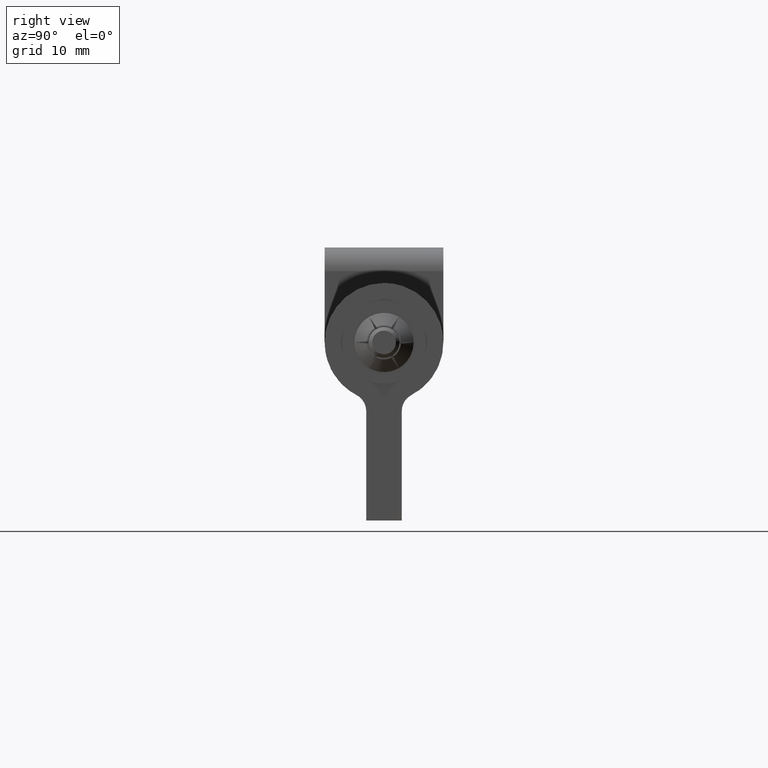
[diagram: clean part render]
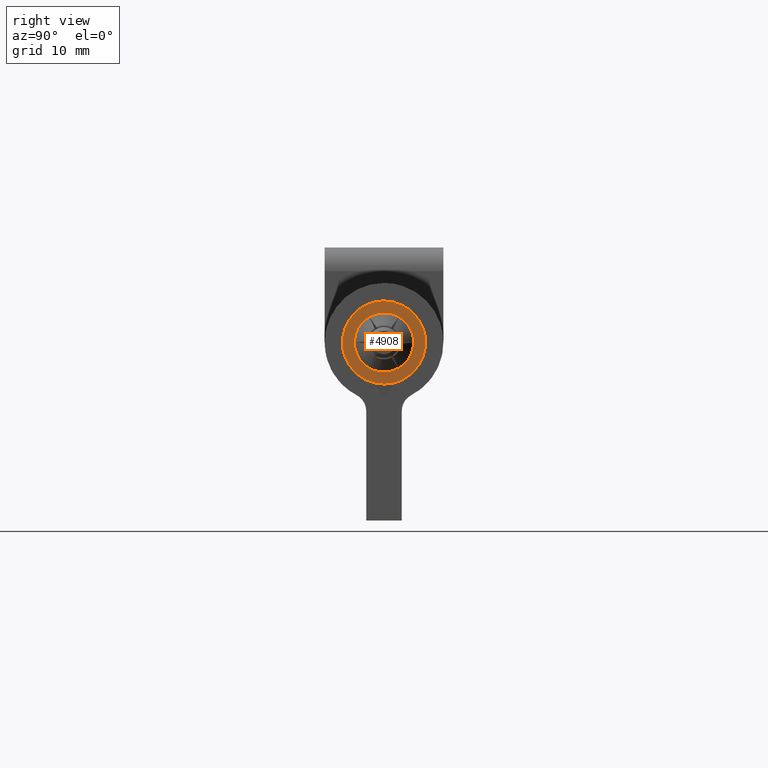
[diagram: same view with one face highlighted and labeled with its STEP entity id]
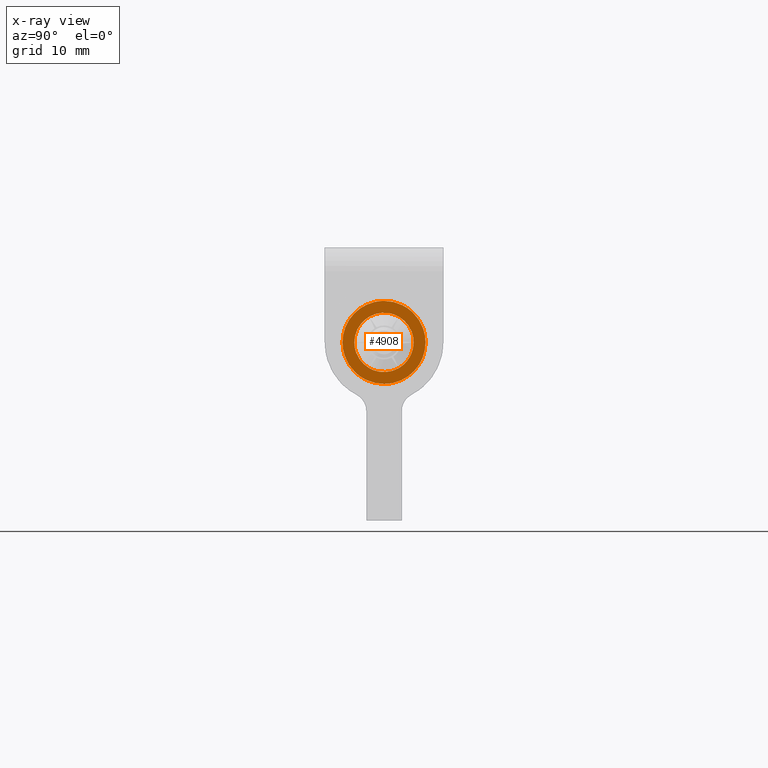
[diagram: x-ray of the same camera — body ghosted, the highlighted face saturated]
A machine part, right view. The second image highlights one B-rep face of the part: STEP entity #4908.
The next image is the same camera in x-ray: the body ghosted, the highlighted face saturated — about 0% of this face is hidden behind the body in this view.
In plain terms, the highlighted face is a freeform B-spline surface patch.
Its self-contained STEP definition (entity closure, byte-faithful):
#3231=CARTESIAN_POINT('',(27.999999999959371,2.409240859568138,2.538810073887069));
#3232=VERTEX_POINT('',#3231);
#3233=CARTESIAN_POINT('',(28.0,3.499999999999783,-9.636737E-014));
#3234=VERTEX_POINT('',#3233);
#3235=CARTESIAN_POINT('',(27.999999999959371,2.409240859568138,2.538810073887069));
#3236=CARTESIAN_POINT('',(27.999999999961780,2.570225856628080,2.386066624172577));
#3237=CARTESIAN_POINT('',(27.999999999967791,2.892297416835023,2.016219094284538));
#3238=CARTESIAN_POINT('',(27.999999999978069,3.254013342036158,1.365433356918790));
#3239=CARTESIAN_POINT('',(27.999999999989409,3.459191318573557,0.665749802506983));
#3240=CARTESIAN_POINT('',(27.999999999996579,3.500012388989291,0.207120784657451));
#3241=CARTESIAN_POINT('',(28.0,3.499999999999783,-9.636737E-014));
#3242=B_SPLINE_CURVE_WITH_KNOTS('',3,(#3235,#3236,#3237,#3238,#3239,#3240,#3241),.UNSPECIFIED.,.F.,.U.,(4,1,1,1,4),(0.000000014238259,0.665751402348227,1.464647163423969,2.219174010645465,2.840542237138469),.UNSPECIFIED.);
#3243=EDGE_CURVE('',#3232,#3234,#3242,.T.);
#3245=CARTESIAN_POINT('',(28.0,0.0,-3.500000000000000));
#3246=VERTEX_POINT('',#3245);
#3247=CARTESIAN_POINT('',(28.0,3.499999999999783,-9.636737E-014));
#3248=CARTESIAN_POINT('',(27.999999999999979,3.500130392241647,-0.329309051971728));
#3249=CARTESIAN_POINT('',(28.000000000000028,3.412466930117204,-0.944877120011206));
#3250=CARTESIAN_POINT('',(27.999999999999961,3.082824601969040,-1.713868453975557));
#3251=CARTESIAN_POINT('',(28.0,2.640198208618704,-2.334185868881482));
#3252=CARTESIAN_POINT('',(28.000000000000028,2.165288396647390,-2.775346392374348));
#3253=CARTESIAN_POINT('',(27.999999999999918,1.607352775286510,-3.128628153990518));
#3254=CARTESIAN_POINT('',(28.000000000000060,0.916226425377298,-3.414965352860787));
#3255=CARTESIAN_POINT('',(28.000000000000039,0.343627778705872,-3.500146759900428));
#3256=CARTESIAN_POINT('',(28.0,0.0,-3.500000000000000));
#3257=B_SPLINE_CURVE_WITH_KNOTS('',3,(#3247,#3248,#3249,#3250,#3251,#3252,#3253,#3254,#3255,#3256),.UNSPECIFIED.,.F.,.U.,(4,1,1,1,1,1,1,4),(0.000000052157490,0.987889782222958,1.846925004193536,2.491217429283319,3.264325564849523,3.779750797745558,4.466981692409103,5.497821640064636),.UNSPECIFIED.);
#3258=EDGE_CURVE('',#3234,#3246,#3257,.T.);
#3260=CARTESIAN_POINT('',(27.999999999959371,-2.409240859568137,-2.538810073887067));
#3261=VERTEX_POINT('',#3260);
#3262=CARTESIAN_POINT('',(28.0,0.0,-3.500000000000000));
#3263=CARTESIAN_POINT('',(27.999999999993960,-0.359859219560689,-3.500183061191727));
#3264=CARTESIAN_POINT('',(27.999999999983359,-0.982549023659700,-3.403079979210655));
#3265=CARTESIAN_POINT('',(27.999999999969820,-1.796036318970776,-3.038632073028197));
#3266=CARTESIAN_POINT('',(27.999999999962590,-2.218529141223570,-2.719857903514712));
#3267=CARTESIAN_POINT('',(27.999999999959371,-2.409240859568137,-2.538810073887067));
#3268=B_SPLINE_CURVE_WITH_KNOTS('',3,(#3262,#3263,#3264,#3265,#3266,#3267),.UNSPECIFIED.,.F.,.U.,(4,1,1,4),(0.000000013905158,1.079525853581952,1.868397657742726,2.657279305874354),.UNSPECIFIED.);
#3269=EDGE_CURVE('',#3246,#3261,#3268,.T.);
#3344=CARTESIAN_POINT('',(28.0,0.0,3.500000000000000));
#3345=VERTEX_POINT('',#3344);
#3346=CARTESIAN_POINT('',(28.0,0.0,3.500000000000000));
#3347=CARTESIAN_POINT('',(27.999999999993911,0.359863016871307,3.500162027344497));
#3348=CARTESIAN_POINT('',(27.999999999984450,0.927175254800581,3.411695913942832));
#3349=CARTESIAN_POINT('',(27.999999999970321,1.747143093139288,3.067471197900160));
#3350=CARTESIAN_POINT('',(27.999999999963439,2.178412370588235,2.758022279196943));
#3351=CARTESIAN_POINT('',(27.999999999959371,2.409240859568138,2.538810073887069));
#3352=B_SPLINE_CURVE_WITH_KNOTS('',3,(#3346,#3347,#3348,#3349,#3350,#3351),.UNSPECIFIED.,.F.,.U.,(4,1,1,4),(0.000000013905262,1.079525853581974,1.702314600375038,2.657279305874357),.UNSPECIFIED.);
#3353=EDGE_CURVE('',#3345,#3232,#3352,.T.);
#3395=CARTESIAN_POINT('',(28.0,-3.499999999999883,-9.459101E-014));
#3396=VERTEX_POINT('',#3395);
#3397=CARTESIAN_POINT('',(27.999999999959371,-2.409240859568137,-2.538810073887067));
#3398=CARTESIAN_POINT('',(27.999999999963141,-2.656179035385723,-2.304676411157233));
#3399=CARTESIAN_POINT('',(27.999999999970150,-2.997679223452478,-1.869453372971103));
#3400=CARTESIAN_POINT('',(27.999999999979980,-3.283163888558349,-1.248721519460876));
#3401=CARTESIAN_POINT('',(27.999999999989551,-3.454173000166062,-0.665724550438682));
#3402=CARTESIAN_POINT('',(27.999999999995609,-3.500061088438027,-0.266306394642206));
#3403=CARTESIAN_POINT('',(28.0,-3.499999999999883,-9.459101E-014));
#3404=B_SPLINE_CURVE_WITH_KNOTS('',3,(#3397,#3398,#3399,#3400,#3401,#3402,#3403),.UNSPECIFIED.,.F.,.U.,(4,1,1,1,4),(0.000000014238115,1.020820981130070,1.642186078970198,2.041639353378021,2.840542237138319),.UNSPECIFIED.);
#3405=EDGE_CURVE('',#3261,#3396,#3404,.T.);
#3407=CARTESIAN_POINT('',(28.0,-3.499999999999883,-9.459101E-014));
#3408=CARTESIAN_POINT('',(28.000000000000039,-3.500159158261031,0.357949743018625));
#3409=CARTESIAN_POINT('',(27.999999999999929,-3.413589445304913,0.916204540854598));
#3410=CARTESIAN_POINT('',(28.000000000000089,-3.122049052976477,1.619838797748433));
#3411=CARTESIAN_POINT('',(27.999999999999929,-2.814538444908927,2.105455354835672));
#3412=CARTESIAN_POINT('',(28.000000000000188,-2.405632896234894,2.567913107113827));
#3413=CARTESIAN_POINT('',(27.999999999999901,-1.874853588771580,2.987457355102112));
#3414=CARTESIAN_POINT('',(27.999999999999950,-1.240520140574236,3.297037938349385));
#3415=CARTESIAN_POINT('',(28.000000000000210,-0.601310976870706,3.465467574221806));
#3416=CARTESIAN_POINT('',(27.999999999999769,-0.200436769823824,3.500015795892039));
#3417=CARTESIAN_POINT('',(28.0,0.0,3.500000000000000));
#3418=B_SPLINE_CURVE_WITH_KNOTS('',3,(#3407,#3408,#3409,#3410,#3411,#3412,#3413,#3414,#3415,#3416,#3417),.UNSPECIFIED.,.F.,.U.,(4,1,1,1,1,1,1,1,4),(0.000000052155946,1.073788585378987,1.675118029931860,2.276456654459991,2.791847139663632,3.522032093597243,4.295173604991768,4.896509894190674,5.497821640064829),.UNSPECIFIED.);
#3419=EDGE_CURVE('',#3396,#3345,#3418,.T.);
#3973=CARTESIAN_POINT('',(28.0,1.250000254032134,2.165063362795555));
#3974=VERTEX_POINT('',#3973);
#4045=CARTESIAN_POINT('',(28.0,2.500000000000000,1.530758E-016));
#4046=VERTEX_POINT('',#4045);
#4099=CARTESIAN_POINT('',(28.0,1.250000000000000,-2.165064000000100));
#4100=VERTEX_POINT('',#4099);
#4153=CARTESIAN_POINT('',(28.0,-1.250000000000000,-2.165064000000100));
#4154=VERTEX_POINT('',#4153);
#4223=CARTESIAN_POINT('',(28.0,-1.250000000000000,2.165062999999905));
#4224=VERTEX_POINT('',#4223);
#4381=CARTESIAN_POINT('',(28.0,1.250000254032134,2.165063362795555));
#4382=CARTESIAN_POINT('',(28.0,1.450806822638458,2.049239247101102));
#4383=CARTESIAN_POINT('',(27.999999999999940,1.743735157992030,1.820415054590030));
#4384=CARTESIAN_POINT('',(28.000000000000131,2.099603368873388,1.386823704461508));
#4385=CARTESIAN_POINT('',(27.999999999999702,2.332533798663091,0.951070335471152));
#4386=CARTESIAN_POINT('',(28.000000000000391,2.471693023128636,0.463599688982680));
#4387=CARTESIAN_POINT('',(27.999999999999702,2.500014547895127,0.149988963467968));
#4388=CARTESIAN_POINT('',(28.0,2.500000000000000,1.530758E-016));
#4389=B_SPLINE_CURVE_WITH_KNOTS('',3,(#4381,#4382,#4383,#4384,#4385,#4386,#4387,#4388),.UNSPECIFIED.,.F.,.U.,(4,1,1,1,1,4),(0.000000024618684,0.695413311101813,1.104486125796111,1.677164354418533,2.168054125964194,2.618022786524008),.UNSPECIFIED.);
#4390=EDGE_CURVE('',#3974,#4046,#4389,.T.);
#4630=CARTESIAN_POINT('',(28.0,2.500000000000000,1.530758E-016));
#4631=CARTESIAN_POINT('',(27.999999999999961,2.500043468027985,-0.204531658367949));
#4632=CARTESIAN_POINT('',(28.000000000000028,2.447871384142051,-0.627224320636368));
#4633=CARTESIAN_POINT('',(28.000000000000011,2.220432971227176,-1.202772253830683));
#4634=CARTESIAN_POINT('',(27.999999999999929,1.828693764809412,-1.749447136830397));
#4635=CARTESIAN_POINT('',(28.000000000000082,1.474438068351437,-2.035630988469716));
#4636=CARTESIAN_POINT('',(28.0,1.250000000000000,-2.165064000000100));
#4637=B_SPLINE_CURVE_WITH_KNOTS('',3,(#4630,#4631,#4632,#4633,#4634,#4635,#4636),.UNSPECIFIED.,.F.,.U.,(4,1,1,1,4),(0.000000024618720,0.613598262857542,1.268112393423468,1.840797465847526,2.618023399937272),.UNSPECIFIED.);
#4638=EDGE_CURVE('',#4046,#4100,#4637,.T.);
#4660=CARTESIAN_POINT('',(28.0,1.250000000000000,-2.165064000000100));
#4661=CARTESIAN_POINT('',(28.000000000000039,1.002100413629216,-2.308442416398884));
#4662=CARTESIAN_POINT('',(27.999999999999950,0.547352418730374,-2.474959919381392));
#4663=CARTESIAN_POINT('',(28.000000000000071,-0.041562291559818,-2.513518423784426));
#4664=CARTESIAN_POINT('',(27.999999999999851,-0.625314672048996,-2.446398486410439));
#4665=CARTESIAN_POINT('',(27.999999999999840,-1.002090294719192,-2.308435862241776));
#4666=CARTESIAN_POINT('',(28.0,-1.250000000000000,-2.165064000000100));
#4667=B_SPLINE_CURVE_WITH_KNOTS('',3,(#4660,#4661,#4662,#4663,#4664,#4665,#4666),.UNSPECIFIED.,.F.,.U.,(4,1,1,1,4),(0.000000024618425,0.859042751859408,1.431718894339348,1.758980080179177,2.618022807420120),.UNSPECIFIED.);
#4668=EDGE_CURVE('',#4100,#4154,#4667,.T.);
#4699=CARTESIAN_POINT('',(28.0,-2.500000000000000,-1.530758E-016));
#4700=VERTEX_POINT('',#4699);
#4706=CARTESIAN_POINT('',(28.0,-1.250000000000000,-2.165064000000100));
#4707=CARTESIAN_POINT('',(28.000000000000021,-1.450807212983451,-2.049241351539040));
#4708=CARTESIAN_POINT('',(27.999999999999979,-1.722036532871046,-1.837367748942361));
#4709=CARTESIAN_POINT('',(28.000000000000028,-2.049133689119378,-1.451835374621145));
#4710=CARTESIAN_POINT('',(27.999999999999972,-2.246355776061816,-1.122787583653102));
#4711=CARTESIAN_POINT('',(28.000000000000139,-2.442234269104157,-0.627158268346832));
#4712=CARTESIAN_POINT('',(28.000000000000082,-2.500150271737515,-0.259096448777760));
#4713=CARTESIAN_POINT('',(28.0,-2.500000000000000,-1.530758E-016));
#4714=B_SPLINE_CURVE_WITH_KNOTS('',3,(#4706,#4707,#4708,#4709,#4710,#4711,#4712,#4713),.UNSPECIFIED.,.F.,.U.,(4,1,1,1,1,4),(0.000000024618370,0.695413492240477,1.022667635324225,1.513537079589816,1.840797514026379,2.618023468458472),.UNSPECIFIED.);
#4715=EDGE_CURVE('',#4154,#4700,#4714,.T.);
#4735=CARTESIAN_POINT('',(28.0,-1.250000000000000,2.165062999999905));
#4736=CARTESIAN_POINT('',(28.0,-1.120112016134382,2.240066307119091));
#4737=CARTESIAN_POINT('',(27.999999999999979,-0.809515542261805,2.383872455680507));
#4738=CARTESIAN_POINT('',(28.000000000000050,-0.341703319189070,2.492968221353797));
#4739=CARTESIAN_POINT('',(27.999999999999890,0.177916036356946,2.509964027412159));
#4740=CARTESIAN_POINT('',(28.000000000000071,0.706035204991177,2.422781663196098));
#4741=CARTESIAN_POINT('',(27.999999999999961,1.072893938854558,2.267374534026986));
#4742=CARTESIAN_POINT('',(28.0,1.250000254032134,2.165063362795555));
#4743=B_SPLINE_CURVE_WITH_KNOTS('',3,(#4735,#4736,#4737,#4738,#4739,#4740,#4741,#4742),.UNSPECIFIED.,.F.,.U.,(4,1,1,1,1,4),(0.000000024618641,0.449968804208449,1.022667639483565,1.431719261621071,2.004425222310133,2.618023479100754),.UNSPECIFIED.);
#4744=EDGE_CURVE('',#4224,#3974,#4743,.T.);
#4878=CARTESIAN_POINT('',(28.0,-3.849649986432458,-3.849649986432642));
#4879=CARTESIAN_POINT('',(28.0,-3.849649986432458,3.849650174187273));
#4880=CARTESIAN_POINT('',(28.0,3.849650174187089,-3.849649986432642));
#4881=CARTESIAN_POINT('',(28.0,3.849650174187089,3.849650174187273));
#4882=B_SPLINE_SURFACE_WITH_KNOTS('',1,1,((#4878,#4880),(#4879,#4881)),.UNSPECIFIED.,.F.,.F.,.U.,(2,2),(2,2),(0.0,7.699300160619915),(0.0,7.699300160619547),.UNSPECIFIED.);
#4883=ORIENTED_EDGE('',*,*,#3419,.F.);
#4884=ORIENTED_EDGE('',*,*,#3405,.F.);
#4885=ORIENTED_EDGE('',*,*,#3269,.F.);
#4886=ORIENTED_EDGE('',*,*,#3258,.F.);
#4887=ORIENTED_EDGE('',*,*,#3243,.F.);
#4888=ORIENTED_EDGE('',*,*,#3353,.F.);
#4889=EDGE_LOOP('',(#4883,#4884,#4885,#4886,#4887,#4888));
#4890=FACE_OUTER_BOUND('',#4889,.T.);
#4891=ORIENTED_EDGE('',*,*,#4744,.T.);
#4892=ORIENTED_EDGE('',*,*,#4390,.T.);
#4893=ORIENTED_EDGE('',*,*,#4638,.T.);
#4894=ORIENTED_EDGE('',*,*,#4668,.T.);
#4895=ORIENTED_EDGE('',*,*,#4715,.T.);
#4896=CARTESIAN_POINT('',(28.0,-2.500000000000000,-1.530758E-016));
#4897=CARTESIAN_POINT('',(27.999999999999961,-2.500203046086718,0.286371823221231));
#4898=CARTESIAN_POINT('',(28.000000000000060,-2.417073956104712,0.763466063928540));
#4899=CARTESIAN_POINT('',(27.999999999999961,-2.143845036880141,1.317375292542506));
#4900=CARTESIAN_POINT('',(28.000000000000028,-1.785722929692772,1.784112856441622));
#4901=CARTESIAN_POINT('',(27.999999999999961,-1.474452362567039,2.035636814582777));
#4902=CARTESIAN_POINT('',(28.0,-1.250000000000000,2.165062999999905));
#4903=B_SPLINE_CURVE_WITH_KNOTS('',3,(#4896,#4897,#4898,#4899,#4900,#4901,#4902),.UNSPECIFIED.,.F.,.U.,(4,1,1,1,4),(0.000000024618455,0.859042732194310,1.431718861501094,1.840797007064408,2.618022747446020),.UNSPECIFIED.);
#4904=EDGE_CURVE('',#4700,#4224,#4903,.T.);
#4905=ORIENTED_EDGE('',*,*,#4904,.T.);
#4906=EDGE_LOOP('',(#4891,#4892,#4893,#4894,#4895,#4905));
#4907=FACE_BOUND('',#4906,.T.);
#4908=ADVANCED_FACE('',(#4890,#4907),#4882,.F.);